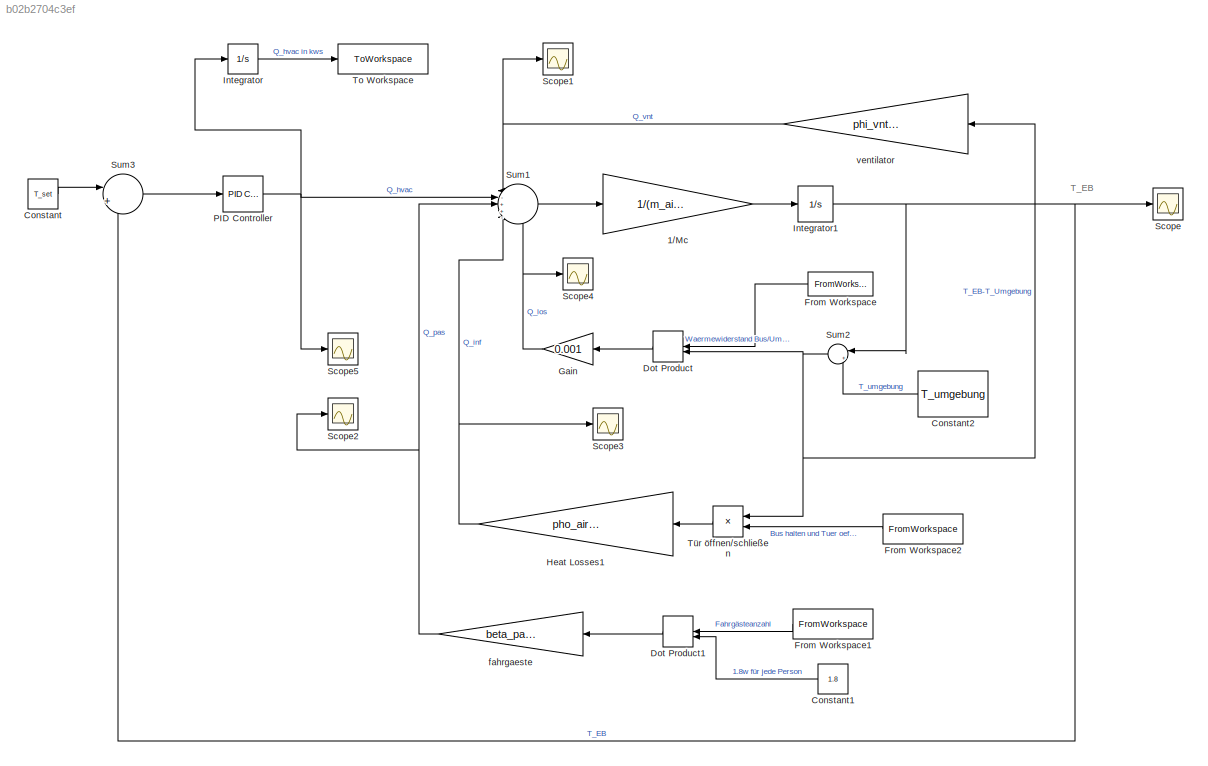
MODEL slx_b02b2704c3ef
KIND model
CONFIG AbsTol = auto
CONFIG EnableMultiTasking = off
CONFIG FixedStep = auto
CONFIG MaxStep = auto
CONFIG MinStep = auto
CONFIG RelTol = 1e-3
CONFIG SampleTimeConstraint = Unconstrained
CONFIG Solver = VariableStepAuto
CONFIG SolverName = VariableStepAuto
CONFIG StartTime = 0.0
CONFIG StopTime = 1740
BLOCK [Gain] 1//Mc
  Gain = 1/(m_air*c_p)
  OutDataTypeStr = Inherit: Same as input
  ParamDataTypeStr = Inherit: Same as input
  SaturateOnIntegerOverflow = on
BLOCK [Constant] Constant
  Value = T_set
BLOCK [Constant] Constant1
  NameLocation = top
  Value = 1.8
BLOCK [Constant] Constant2
  NameLocation = top
  Value = T_umgebung
BLOCK [DotProduct] Dot Product
  NameLocation = top
  OutDataTypeStr = Inherit: Inherit via internal rule
BLOCK [DotProduct] Dot Product1
  NameLocation = top
  OutDataTypeStr = Inherit: Inherit via internal rule
BLOCK [FromWorkspace] From Workspace
  NameLocation = top
  VariableName = R_eq
BLOCK [FromWorkspace] From Workspace1
  NameLocation = top
  VariableName = Fahrgaeste
BLOCK [FromWorkspace] From Workspace2
  NameLocation = top
  VariableName = halten
BLOCK [Gain] Gain
  Gain = 0.001
  NameLocation = top
BLOCK [Gain] Heat Losses1
  Gain = pho_air*c_p*Ca*A_dor*(R_p^0.5)
  OutDataTypeStr = Inherit: Same as input
  ParamDataTypeStr = Inherit: Same as input
  SaturateOnIntegerOverflow = on
BLOCK [Integrator] Integrator
  Ports = [1, 1]
BLOCK [Integrator] Integrator1
  InitialCondition = 20
  Ports = [1, 1]
BLOCK [Reference] PID Controller  REF=simulink/Continuous/PID Controller
  Ports = [1, 1]
  SourceBlock = simulink/Continuous/PID Controller
  SourceProductBaseCode = SL
  SourceType = PID 1dof
BLOCK [Scope] Scope
  Floating = off
  NumInputPorts = 1
  Ports = [1]
  ScopeSpecificationString = Simulink.scopes.TimeScopeBlockCfg('CurrentConfiguration', extmgr.ConfigurationSet(extmgr.Configuration('Core','General UI',true),extmgr.Configuration('Core','Source UI',true),extmgr.Configuration('Sources','WiredSimulink',true),extmgr.Configuration('Visuals','Time Domain',true,'SerializedDisplays',{struct('MinYLimReal','19.90349','MaxYLimReal','20.25999','YLabelReal','','MinYLimMag','19.90349','Ma...<+1404ch>
BLOCK [Scope] Scope1
  Floating = off
  NumInputPorts = 1
  Ports = [1]
  ScopeSpecificationString = Simulink.scopes.TimeScopeBlockCfg('CurrentConfiguration', extmgr.ConfigurationSet(extmgr.Configuration('Core','General UI',true),extmgr.Configuration('Core','Source UI',true),extmgr.Configuration('Sources','WiredSimulink',true,'DataLoggingVariableName','ScopeData1'),extmgr.Configuration('Visuals','Time Domain',true,'SerializedDisplays',{struct('MinYLimReal','4.16572','MaxYLimReal','4.18108','YLabe...<+1391ch>
BLOCK [Scope] Scope2
  Floating = off
  NumInputPorts = 1
  Ports = [1]
  ScopeSpecificationString = Simulink.scopes.TimeScopeBlockCfg('CurrentConfiguration', extmgr.ConfigurationSet(extmgr.Configuration('Core','General UI',true),extmgr.Configuration('Core','Source UI',true),extmgr.Configuration('Sources','WiredSimulink',true,'DataLoggingVariableName','ScopeData2'),extmgr.Configuration('Visuals','Time Domain',true,'SerializedDisplays',{struct('MinYLimReal','0.03118','MaxYLimReal','0.04333','YLabe...<+1390ch>
BLOCK [Scope] Scope3
  Floating = off
  NumInputPorts = 1
  Ports = [1]
  ScopeSpecificationString = Simulink.scopes.TimeScopeBlockCfg('CurrentConfiguration', extmgr.ConfigurationSet(extmgr.Configuration('Core','General UI',true),extmgr.Configuration('Core','Source UI',true),extmgr.Configuration('Sources','WiredSimulink',true,'DataLoggingVariableName','ScopeData3'),extmgr.Configuration('Visuals','Time Domain',true,'SerializedDisplays',{struct('MinYLimReal','-0.2341','MaxYLimReal','2.10688','YLabe...<+1392ch>
BLOCK [Scope] Scope4
  Floating = off
  NumInputPorts = 1
  Ports = [1]
  ScopeSpecificationString = Simulink.scopes.TimeScopeBlockCfg('CurrentConfiguration', extmgr.ConfigurationSet(extmgr.Configuration('Core','General UI',true),extmgr.Configuration('Core','Source UI',true),extmgr.Configuration('Sources','WiredSimulink',true,'DataLoggingVariableName','ScopeData4'),extmgr.Configuration('Visuals','Time Domain',true,'SerializedDisplays',{struct('MinYLimReal','0.87172','MaxYLimReal','0.89879','YLabe...<+1434ch>
BLOCK [Scope] Scope5
  Floating = off
  NumInputPorts = 1
  Ports = [1]
  ScopeSpecificationString = Simulink.scopes.TimeScopeBlockCfg('CurrentConfiguration', extmgr.ConfigurationSet(extmgr.Configuration('Core','General UI',true),extmgr.Configuration('Core','Source UI',true),extmgr.Configuration('Sources','WiredSimulink',true,'DataLoggingVariableName','ScopeData5'),extmgr.Configuration('Visuals','Time Domain',true,'SerializedDisplays',{struct('MinYLimReal','-53.49767','MaxYLimReal','5.94419','YLa...<+1444ch>
BLOCK [Sum] Sum1
  InputSameDT = on
  Inputs = |-++--
  OutDataTypeStr = Inherit: Same as first input
  Ports = [5, 1]
  SaturateOnIntegerOverflow = on
BLOCK [Sum] Sum2
  InputSameDT = on
  Inputs = |+-
  OutDataTypeStr = Inherit: Same as first input
  Ports = [2, 1]
  SaturateOnIntegerOverflow = on
BLOCK [Sum] Sum3
  InputSameDT = on
  Inputs = |+-
  NameLocation = top
  OutDataTypeStr = Inherit: Same as first input
  Ports = [2, 1]
  SaturateOnIntegerOverflow = on
BLOCK [ToWorkspace] To Workspace
  FixptAsFi = on
  MaxDataPoints = inf
  Ports = [1]
  SampleTime = -1
  SaveFormat = Timeseries
  VariableName = simout
BLOCK [Product] Tür öffnen//schließen
  NameLocation = top
  Ports = [2, 1]
  RndMeth = Zero
BLOCK [Gain] fahrgaeste
  Gain = beta_pas/1000
  OutDataTypeStr = Inherit: Same as input
  ParamDataTypeStr = Inherit: Same as input
  SaturateOnIntegerOverflow = on
BLOCK [Gain] ventilator
  Gain = phi_vnt*V_hvac*pho_air*c_p
  NameLocation = top
  OutDataTypeStr = Inherit: Same as input
  ParamDataTypeStr = Inherit: Same as input
  SaturateOnIntegerOverflow = on
ANNOTATION (root): T_EB
LINE 1//Mc:1 -> Integrator1:1
LINE Constant1:1 -> Dot Product1:2
LINE Constant2:1 -> Sum2:2
LINE Constant:1 -> Sum3:1
LINE Dot Product1:1 -> fahrgaeste:1
LINE Dot Product:1 -> Gain:1
LINE From Workspace1:1 -> Dot Product1:1
LINE From Workspace2:1 -> Tür öffnen//schließen:2
LINE From Workspace:1 -> Dot Product:1
NET Gain:1 -> Scope4:1, Sum1:5
NET Heat Losses1:1 -> Scope3:1, Sum1:4
NET Integrator1:1 -> Scope:1, Sum2:1, Sum3:2
LINE Integrator:1 -> To Workspace:1
NET PID Controller:1 -> Integrator:1, Scope5:1, Sum1:2
LINE Sum1:1 -> 1//Mc:1
NET Sum2:1 -> Dot Product:2, Tür öffnen//schließen:1, ventilator:1
LINE Sum3:1 -> PID Controller:1
LINE Tür öffnen//schließen:1 -> Heat Losses1:1
NET fahrgaeste:1 -> Scope2:1, Sum1:3
NET ventilator:1 -> Scope1:1, Sum1:1
note: NET lines group one-source signal fan-out (src -> all destinations, sorted); 1:1 wires keep LINE
